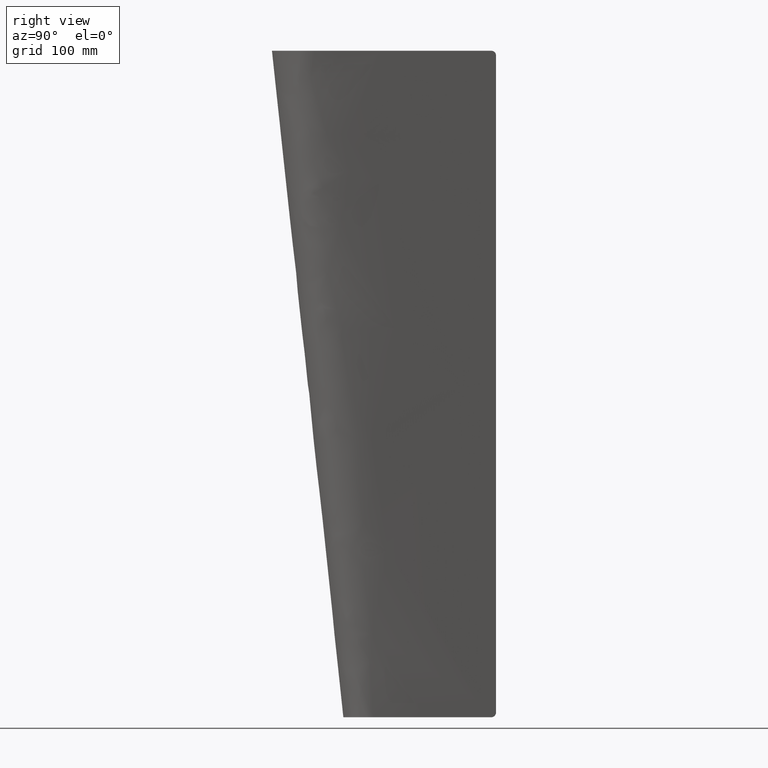
[diagram: clean part render]
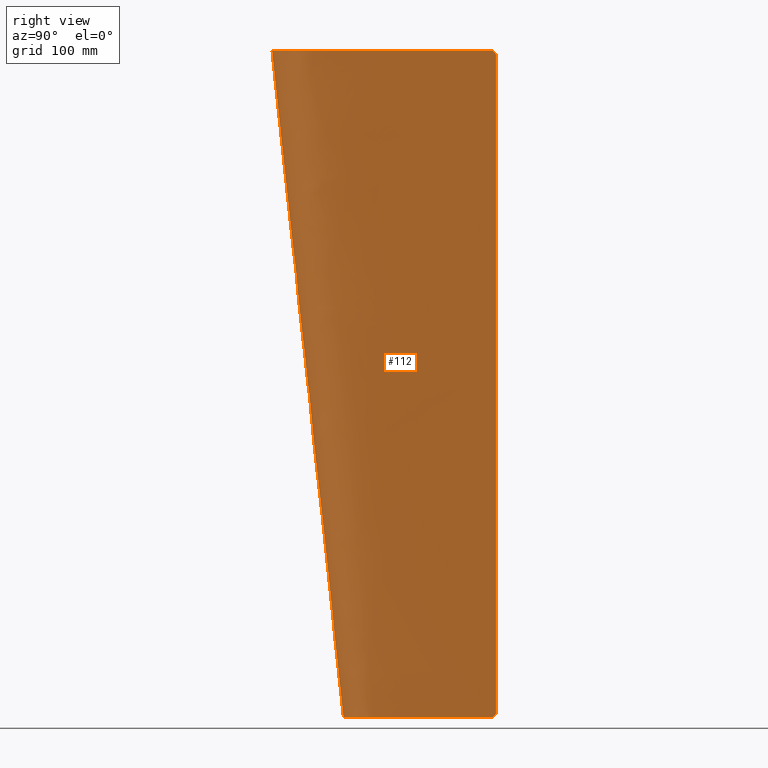
[diagram: same view with one face highlighted and labeled with its STEP entity id]
A machine part, right view. The second image highlights one B-rep face of the part: STEP entity #112.
In plain terms, the highlighted face is a freeform B-spline surface patch.
Its self-contained STEP definition (entity closure, byte-faithful):
#107=B_SPLINE_SURFACE_WITH_KNOTS('',3,3,((#541,#542,#543,#544,#545,#546,
#547,#548,#549,#550,#551,#552,#553),(#554,#555,#556,#557,#558,#559,#560,
#561,#562,#563,#564,#565,#566),(#567,#568,#569,#570,#571,#572,#573,#574,
#575,#576,#577,#578,#579),(#580,#581,#582,#583,#584,#585,#586,#587,#588,
#589,#590,#591,#592),(#593,#594,#595,#596,#597,#598,#599,#600,#601,#602,
#603,#604,#605),(#606,#607,#608,#609,#610,#611,#612,#613,#614,#615,#616,
#617,#618),(#619,#620,#621,#622,#623,#624,#625,#626,#627,#628,#629,#630,
#631),(#632,#633,#634,#635,#636,#637,#638,#639,#640,#641,#642,#643,#644),
(#645,#646,#647,#648,#649,#650,#651,#652,#653,#654,#655,#656,#657),(#658,
#659,#660,#661,#662,#663,#664,#665,#666,#667,#668,#669,#670),(#671,#672,
#673,#674,#675,#676,#677,#678,#679,#680,#681,#682,#683),(#684,#685,#686,
#687,#688,#689,#690,#691,#692,#693,#694,#695,#696),(#697,#698,#699,#700,
#701,#702,#703,#704,#705,#706,#707,#708,#709),(#710,#711,#712,#713,#714,
#715,#716,#717,#718,#719,#720,#721,#722),(#723,#724,#725,#726,#727,#728,
#729,#730,#731,#732,#733,#734,#735),(#736,#737,#738,#739,#740,#741,#742,
#743,#744,#745,#746,#747,#748),(#749,#750,#751,#752,#753,#754,#755,#756,
#757,#758,#759,#760,#761),(#762,#763,#764,#765,#766,#767,#768,#769,#770,
#771,#772,#773,#774),(#775,#776,#777,#778,#779,#780,#781,#782,#783,#784,
#785,#786,#787),(#788,#789,#790,#791,#792,#793,#794,#795,#796,#797,#798,
#799,#800),(#801,#802,#803,#804,#805,#806,#807,#808,#809,#810,#811,#812,
#813),(#814,#815,#816,#817,#818,#819,#820,#821,#822,#823,#824,#825,#826),
(#827,#828,#829,#830,#831,#832,#833,#834,#835,#836,#837,#838,#839),(#840,
#841,#842,#843,#844,#845,#846,#847,#848,#849,#850,#851,#852),(#853,#854,
#855,#856,#857,#858,#859,#860,#861,#862,#863,#864,#865),(#866,#867,#868,
#869,#870,#871,#872,#873,#874,#875,#876,#877,#878),(#879,#880,#881,#882,
#883,#884,#885,#886,#887,#888,#889,#890,#891),(#892,#893,#894,#895,#896,
#897,#898,#899,#900,#901,#902,#903,#904),(#905,#906,#907,#908,#909,#910,
#911,#912,#913,#914,#915,#916,#917),(#918,#919,#920,#921,#922,#923,#924,
#925,#926,#927,#928,#929,#930),(#931,#932,#933,#934,#935,#936,#937,#938,
#939,#940,#941,#942,#943),(#944,#945,#946,#947,#948,#949,#950,#951,#952,
#953,#954,#955,#956),(#957,#958,#959,#960,#961,#962,#963,#964,#965,#966,
#967,#968,#969),(#970,#971,#972,#973,#974,#975,#976,#977,#978,#979,#980,
#981,#982),(#983,#984,#985,#986,#987,#988,#989,#990,#991,#992,#993,#994,
#995),(#996,#997,#998,#999,#1000,#1001,#1002,#1003,#1004,#1005,#1006,#1007,
#1008),(#1009,#1010,#1011,#1012,#1013,#1014,#1015,#1016,#1017,#1018,#1019,
#1020,#1021),(#1022,#1023,#1024,#1025,#1026,#1027,#1028,#1029,#1030,#1031,
#1032,#1033,#1034),(#1035,#1036,#1037,#1038,#1039,#1040,#1041,#1042,#1043,
#1044,#1045,#1046,#1047),(#1048,#1049,#1050,#1051,#1052,#1053,#1054,#1055,
#1056,#1057,#1058,#1059,#1060),(#1061,#1062,#1063,#1064,#1065,#1066,#1067,
#1068,#1069,#1070,#1071,#1072,#1073),(#1074,#1075,#1076,#1077,#1078,#1079,
#1080,#1081,#1082,#1083,#1084,#1085,#1086),(#1087,#1088,#1089,#1090,#1091,
#1092,#1093,#1094,#1095,#1096,#1097,#1098,#1099),(#1100,#1101,#1102,#1103,
#1104,#1105,#1106,#1107,#1108,#1109,#1110,#1111,#1112),(#1113,#1114,#1115,
#1116,#1117,#1118,#1119,#1120,#1121,#1122,#1123,#1124,#1125),(#1126,#1127,
#1128,#1129,#1130,#1131,#1132,#1133,#1134,#1135,#1136,#1137,#1138),(#1139,
#1140,#1141,#1142,#1143,#1144,#1145,#1146,#1147,#1148,#1149,#1150,#1151),
(#1152,#1153,#1154,#1155,#1156,#1157,#1158,#1159,#1160,#1161,#1162,#1163,
#1164),(#1165,#1166,#1167,#1168,#1169,#1170,#1171,#1172,#1173,#1174,#1175,
#1176,#1177),(#1178,#1179,#1180,#1181,#1182,#1183,#1184,#1185,#1186,#1187,
#1188,#1189,#1190)),.UNSPECIFIED.,.F.,.F.,.F.,(4,3,1,1,1,1,1,1,1,1,1,1,
1,1,1,1,1,1,1,1,1,1,1,1,1,1,1,1,1,1,1,1,1,1,1,1,1,1,1,3,3,4),(4,3,3,3,4),
(0.,0.0270766096748266,0.14502855471111,0.262980499747393,0.277724492876929,
0.292468486006464,0.299840482571232,0.307212479135999,0.321956472265535,
0.33670046539507,0.344072461959838,0.351444458524606,0.358816455089373,
0.366188451654141,0.380932444783676,0.395676437913212,0.410420431042747,
0.425164424172283,0.439908417301818,0.469396403560889,0.49888438981996,
0.52837237607903,0.557860362338101,0.572604355467637,0.587348348597172,
0.602092341726707,0.616836334856243,0.631580327985778,0.638952324550546,
0.646324321115314,0.653696317680081,0.661068314244849,0.675812307374384,
0.69055630050392,0.697928297068688,0.705300293633455,0.720044286762991,
0.734788279892526,0.852740224928809,0.970692169965093,0.990367095145295,
1.),(0.,0.115384615384615,0.884615384615385,0.896213021416898,1.),
 .UNSPECIFIED.);
#112=ADVANCED_FACE('',(#126),#107,.T.);
#126=FACE_OUTER_BOUND('',#136,.T.);
#136=EDGE_LOOP('',(#171,#172,#173,#174,#175,#176,#177,#178));
#171=ORIENTED_EDGE('',*,*,#235,.T.);
#172=ORIENTED_EDGE('',*,*,#236,.F.);
#173=ORIENTED_EDGE('',*,*,#225,.T.);
#174=ORIENTED_EDGE('',*,*,#237,.F.);
#175=ORIENTED_EDGE('',*,*,#231,.T.);
#176=ORIENTED_EDGE('',*,*,#238,.F.);
#177=ORIENTED_EDGE('',*,*,#227,.T.);
#178=ORIENTED_EDGE('',*,*,#239,.F.);
#209=VERTEX_POINT('',#344);
#210=VERTEX_POINT('',#386);
#211=VERTEX_POINT('',#430);
#212=VERTEX_POINT('',#431);
#215=VERTEX_POINT('',#491);
#216=VERTEX_POINT('',#492);
#219=VERTEX_POINT('',#515);
#220=VERTEX_POINT('',#516);
#225=EDGE_CURVE('',#210,#209,#248,.T.);
#227=EDGE_CURVE('',#211,#212,#249,.T.);
#231=EDGE_CURVE('',#215,#216,#251,.T.);
#235=EDGE_CURVE('',#219,#220,#253,.T.);
#236=EDGE_CURVE('',#210,#220,#254,.T.);
#237=EDGE_CURVE('',#215,#209,#255,.T.);
#238=EDGE_CURVE('',#211,#216,#256,.T.);
#239=EDGE_CURVE('',#219,#212,#257,.T.);
#248=B_SPLINE_CURVE_WITH_KNOTS('',3,(#345,#346,#347,#348,#349,#350,#351,
#352,#353,#354,#355,#356,#357,#358,#359,#360,#361,#362,#363,#364,#365,#366,
#367,#368,#369,#370,#371,#372,#373,#374,#375,#376,#377,#378,#379,#380,#381,
#382,#383,#384,#385),.UNSPECIFIED.,.F.,.F.,(4,1,1,1,1,1,1,1,1,1,1,1,1,1,
1,1,1,1,1,1,1,1,1,1,1,1,1,1,1,1,1,1,1,1,1,1,1,1,4),(0.,0.116670801739459,
0.244447193504246,0.260419242474845,0.276391291445443,0.284377315930742,
0.292363340416041,0.30833538938664,0.324307438357238,0.332293462842537,
0.340279487327837,0.348265511813136,0.356251536298435,0.372223585269033,
0.388195634239632,0.40416768321023,0.420139732180829,0.436111781151427,
0.468055879092624,0.49999997703382,0.531944074975017,0.563888172916214,
0.579860221886812,0.595832270857411,0.611804319828009,0.627776368798608,
0.643748417769206,0.651734442254505,0.659720466739804,0.667706491225104,
0.675692515710403,0.691664564681001,0.707636613651599,0.715622638136899,
0.723608662622198,0.739580711592796,0.755552760563395,0.883329152328182,
1.),.UNSPECIFIED.);
#249=B_SPLINE_CURVE_WITH_KNOTS('',3,(#389,#390,#391,#392,#393,#394,#395,
#396,#397,#398,#399,#400,#401,#402,#403,#404,#405,#406,#407,#408,#409,#410,
#411,#412,#413,#414,#415,#416,#417,#418,#419,#420,#421,#422,#423,#424,#425,
#426,#427,#428,#429),.UNSPECIFIED.,.F.,.F.,(4,1,1,1,1,1,1,1,1,1,1,1,1,1,
1,1,1,1,1,1,1,1,1,1,1,1,1,1,1,1,1,1,1,1,1,1,1,1,4),(0.,0.117269018146902,
0.244845996439435,0.260793118726002,0.276740241012568,0.284713802155851,
0.292687363299135,0.308634485585701,0.324581607872268,0.332555169015551,
0.340528730158835,0.348502291302118,0.356475852445401,0.372422974731968,
0.388370097018534,0.404317219305101,0.420264341591668,0.436211463878234,
0.468105708451367,0.499999953024501,0.531894197597634,0.563788442170767,
0.579735564457334,0.5956826867439,0.611629809030467,0.627576931317034,0.6435240536036,
0.651497614746883,0.659471175890167,0.66744473703345,0.675418298176733,
0.6913654204633,0.707312542749867,0.71528610389315,0.723259665036433,0.739206787323,
0.755153909609566,0.882730887902099,1.),.UNSPECIFIED.);
#251=B_SPLINE_CURVE_WITH_KNOTS('',3,(#481,#482,#483,#484,#485,#486,#487,
#488,#489,#490),.UNSPECIFIED.,.F.,.F.,(4,3,3,4),(0.,0.468789890672117,0.993968865922699,
1.),.UNSPECIFIED.);
#253=B_SPLINE_CURVE_WITH_KNOTS('',3,(#508,#509,#510,#511,#512,#513,#514),
 .UNSPECIFIED.,.F.,.F.,(4,3,4),(0.,0.468789890674854,1.),.UNSPECIFIED.);
#254=B_SPLINE_CURVE_WITH_KNOTS('',3,(#517,#518,#519,#520,#521,#522),
 .UNSPECIFIED.,.F.,.F.,(4,2,4),(0.,0.5,1.),.UNSPECIFIED.);
#255=B_SPLINE_CURVE_WITH_KNOTS('',3,(#523,#524,#525,#526,#527,#528),
 .UNSPECIFIED.,.F.,.F.,(4,2,4),(0.,0.5,1.),.UNSPECIFIED.);
#256=B_SPLINE_CURVE_WITH_KNOTS('',3,(#529,#530,#531,#532,#533,#534),
 .UNSPECIFIED.,.F.,.F.,(4,2,4),(0.,0.5,1.),.UNSPECIFIED.);
#257=B_SPLINE_CURVE_WITH_KNOTS('',3,(#535,#536,#537,#538,#539,#540),
 .UNSPECIFIED.,.F.,.F.,(4,2,4),(0.,0.5,1.),.UNSPECIFIED.);
#344=CARTESIAN_POINT('',(-333.965053328038,-812.968381186053,-187.499999979995));
#345=CARTESIAN_POINT('',(-480.988339299375,-812.968381186072,-187.499999977795));
#346=CARTESIAN_POINT('',(-479.160086222613,-830.504863097711,-187.499999977647));
#347=CARTESIAN_POINT('',(-475.337282315882,-867.161274936592,-187.499999977418));
#348=CARTESIAN_POINT('',(-471.499101163816,-904.031735628332,-187.499999977311));
#349=CARTESIAN_POINT('',(-469.299388478992,-925.068356603149,-187.499999977276));
#350=CARTESIAN_POINT('',(-468.751013844615,-930.232258590686,-187.499999977269));
#351=CARTESIAN_POINT('',(-468.358119933075,-934.314941584154,-187.499999977265));
#352=CARTESIAN_POINT('',(-467.782771624124,-938.327307523754,-187.49999997726));
#353=CARTESIAN_POINT('',(-466.188966870687,-943.101224176674,-187.499999977256));
#354=CARTESIAN_POINT('',(-463.714737113447,-947.363651332985,-187.499999977253));
#355=CARTESIAN_POINT('',(-461.272989598694,-950.378789796676,-187.499999977251));
#356=CARTESIAN_POINT('',(-459.239636681243,-952.426464712457,-187.49999997725));
#357=CARTESIAN_POINT('',(-457.028688771037,-954.244143225862,-187.49999997725));
#358=CARTESIAN_POINT('',(-453.868640094342,-956.335479524349,-187.499999977249));
#359=CARTESIAN_POINT('',(-449.627373824587,-958.338299593767,-187.499999977249));
#360=CARTESIAN_POINT('',(-444.457621104176,-960.341785997172,-187.49999997725));
#361=CARTESIAN_POINT('',(-439.215719791301,-961.940719330081,-187.499999977251));
#362=CARTESIAN_POINT('',(-433.93641474848,-963.204426248655,-187.499999977253));
#363=CARTESIAN_POINT('',(-426.880952004902,-964.509287655462,-187.499999977256));
#364=CARTESIAN_POINT('',(-418.054113258737,-965.510289570531,-187.49999997726));
#365=CARTESIAN_POINT('',(-407.47597794209,-965.884432364477,-187.499999977264));
#366=CARTESIAN_POINT('',(-396.898040571948,-965.510298049321,-187.499999977267));
#367=CARTESIAN_POINT('',(-388.071489122787,-964.509033795327,-187.499999977269));
#368=CARTESIAN_POINT('',(-381.015930086901,-963.204410576133,-187.499999977269));
#369=CARTESIAN_POINT('',(-375.737428326976,-961.939627089599,-187.499999977269));
#370=CARTESIAN_POINT('',(-370.493305549956,-960.344164172543,-187.499999977269));
#371=CARTESIAN_POINT('',(-365.325728383943,-958.338346942769,-187.499999977269));
#372=CARTESIAN_POINT('',(-361.083292718412,-956.336818883523,-187.499999977268));
#373=CARTESIAN_POINT('',(-357.924591725161,-954.243915430927,-187.499999977267));
#374=CARTESIAN_POINT('',(-355.713312921138,-952.426313889384,-187.499999977267));
#375=CARTESIAN_POINT('',(-353.68043134474,-950.378472022442,-187.499999977267));
#376=CARTESIAN_POINT('',(-351.237621231232,-947.363510484659,-187.499999977266));
#377=CARTESIAN_POINT('',(-348.764485373282,-943.10098307583,-187.499999977265));
#378=CARTESIAN_POINT('',(-347.171823658887,-938.327142223051,-187.499999977264));
#379=CARTESIAN_POINT('',(-346.59527845765,-934.314924347883,-187.499999977264));
#380=CARTESIAN_POINT('',(-346.202352789346,-930.232309412005,-187.499999977263));
#381=CARTESIAN_POINT('',(-345.654320321554,-925.068358904184,-187.499999977262));
#382=CARTESIAN_POINT('',(-343.452987184745,-904.031969327017,-187.499999977259));
#383=CARTESIAN_POINT('',(-339.615487511753,-867.161917507294,-187.499999977253));
#384=CARTESIAN_POINT('',(-335.793265643769,-830.504959183981,-187.499999977257));
#385=CARTESIAN_POINT('',(-333.96505332792,-812.968381186065,-187.499999977262));
#386=CARTESIAN_POINT('',(-480.988339299256,-812.96838118606,-187.499999980794));
#389=CARTESIAN_POINT('',(-303.816665289561,-812.968381186065,501.311689277029));
#390=CARTESIAN_POINT('',(-305.797066494257,-831.964749389847,501.311689277029));
#391=CARTESIAN_POINT('',(-309.943871925205,-871.74166626055,501.311689277029));
#392=CARTESIAN_POINT('',(-314.692148107102,-917.288156741347,501.311689277029));
#393=CARTESIAN_POINT('',(-317.832472703473,-947.410461125823,501.311689277029));
#394=CARTESIAN_POINT('',(-318.631893661654,-955.076511028281,501.311689277029));
#395=CARTESIAN_POINT('',(-319.280744121176,-961.296210059936,501.311689277029));
#396=CARTESIAN_POINT('',(-319.935367220209,-967.572594829088,501.311689277029));
#397=CARTESIAN_POINT('',(-320.76365137594,-975.522073419032,501.311689277029));
#398=CARTESIAN_POINT('',(-321.603093461887,-983.604113835508,501.311689277029));
#399=CARTESIAN_POINT('',(-322.29344965963,-990.139559701644,501.311689277029));
#400=CARTESIAN_POINT('',(-322.764064504028,-995.082142477285,501.311689277029));
#401=CARTESIAN_POINT('',(-323.648287948868,-1000.00669383308,501.311689277029));
#402=CARTESIAN_POINT('',(-325.812469320497,-1006.37428016513,501.311689277029));
#403=CARTESIAN_POINT('',(-330.171620479801,-1013.70009372572,501.311689277029));
#404=CARTESIAN_POINT('',(-337.506158815579,-1020.95210994029,501.311689277029));
#405=CARTESIAN_POINT('',(-346.164478754233,-1026.67120173245,501.311689277029));
#406=CARTESIAN_POINT('',(-355.625838742186,-1031.07964107642,501.311689277029));
#407=CARTESIAN_POINT('',(-368.897823003358,-1035.51042746628,501.311689277029));
#408=CARTESIAN_POINT('',(-386.250561326556,-1038.78572098827,501.311689277029));
#409=CARTESIAN_POINT('',(-407.47759066905,-1039.97539924369,501.311689277029));
#410=CARTESIAN_POINT('',(-428.704528895177,-1038.78550700937,501.311689277029));
#411=CARTESIAN_POINT('',(-446.057103383826,-1035.51003889503,501.311689277029));
#412=CARTESIAN_POINT('',(-459.328758149093,-1031.07917429971,501.311689277029));
#413=CARTESIAN_POINT('',(-468.789998354001,-1026.67058926785,501.311689277029));
#414=CARTESIAN_POINT('',(-477.448062149682,-1020.95149089269,501.311689277029));
#415=CARTESIAN_POINT('',(-484.782302336922,-1013.69941488149,501.311689277029));
#416=CARTESIAN_POINT('',(-489.141278037643,-1006.3735299936,501.311689277029));
#417=CARTESIAN_POINT('',(-491.305260815341,-1000.00614760575,501.311689277029));
#418=CARTESIAN_POINT('',(-492.189394510508,-995.081584347215,501.311689277029));
#419=CARTESIAN_POINT('',(-492.659996253039,-990.139112419994,501.311689277029));
#420=CARTESIAN_POINT('',(-493.350327786041,-983.603913770102,501.311689277029));
#421=CARTESIAN_POINT('',(-494.189772942403,-975.521839346548,501.311689277029));
#422=CARTESIAN_POINT('',(-495.018048476071,-967.572442803645,501.311689277029));
#423=CARTESIAN_POINT('',(-495.672661100777,-961.296158952917,501.311689277029));
#424=CARTESIAN_POINT('',(-496.321499847793,-955.076572909652,501.311689277029));
#425=CARTESIAN_POINT('',(-497.120905993008,-947.410665404067,501.311689277029));
#426=CARTESIAN_POINT('',(-500.261163883895,-917.289000802255,501.311689277029));
#427=CARTESIAN_POINT('',(-505.009229748214,-871.744527757617,501.311689277028));
#428=CARTESIAN_POINT('',(-509.156304450629,-831.965027992108,501.311689277028));
#429=CARTESIAN_POINT('',(-511.136734701026,-812.968381186065,501.311689277027));
#430=CARTESIAN_POINT('',(-303.816665289616,-812.968381186059,501.3116892756));
#431=CARTESIAN_POINT('',(-511.136734700971,-812.968381186059,501.311689275598));
#481=CARTESIAN_POINT('',(-333.223705183193,-807.95988118606,-182.491499979997));
#482=CARTESIAN_POINT('',(-328.581127586968,-807.95988118606,-76.4208039249189));
#483=CARTESIAN_POINT('',(-323.938549990296,-807.95988118606,29.6498921301393));
#484=CARTESIAN_POINT('',(-319.295972393388,-807.95988118606,135.720588185187));
#485=CARTESIAN_POINT('',(-314.094955491403,-807.95988118606,254.550154621525));
#486=CARTESIAN_POINT('',(-308.893938589123,-807.95988118606,373.37972105785));
#487=CARTESIAN_POINT('',(-303.692921687331,-807.95988118606,492.209287494197));
#488=CARTESIAN_POINT('',(-303.633193419919,-807.95988118606,493.573921421484));
#489=CARTESIAN_POINT('',(-303.573465152507,-807.95988118606,494.938555348772));
#490=CARTESIAN_POINT('',(-303.513736885095,-807.95988118606,496.30318927606));
#491=CARTESIAN_POINT('',(-333.223705183193,-807.95988118606,-182.491499979997));
#492=CARTESIAN_POINT('',(-303.513736885095,-807.95988118606,496.30318927606));
#508=CARTESIAN_POINT('',(-511.439663105759,-807.95988118606,496.303189276059));
#509=CARTESIAN_POINT('',(-506.797085508877,-807.95988118606,390.232493220387));
#510=CARTESIAN_POINT('',(-502.154507911693,-807.95988118606,284.161797164729));
#511=CARTESIAN_POINT('',(-497.511930314698,-807.95988118606,178.091101109063));
#512=CARTESIAN_POINT('',(-492.251185145258,-807.95988118606,57.8969007460578));
#513=CARTESIAN_POINT('',(-486.990439976081,-807.95988118606,-62.2972996169589));
#514=CARTESIAN_POINT('',(-481.729694807384,-807.95988118606,-182.491499979997));
#515=CARTESIAN_POINT('',(-511.439663105759,-807.95988118606,496.303189276059));
#516=CARTESIAN_POINT('',(-481.729694807384,-807.95988118606,-182.491499979997));
#517=CARTESIAN_POINT('',(-480.988339299254,-812.96838118606,-187.499999979997));
#518=CARTESIAN_POINT('',(-481.126139502883,-811.646610798213,-187.499999979997));
#519=CARTESIAN_POINT('',(-481.284271211434,-810.356489598531,-186.960003076952));
#520=CARTESIAN_POINT('',(-481.557720095635,-808.50749779767,-185.116384165574));
#521=CARTESIAN_POINT('',(-481.671578308449,-807.95988118606,-183.819309233902));
#522=CARTESIAN_POINT('',(-481.729694807384,-807.95988118606,-182.491499979997));
#523=CARTESIAN_POINT('',(-333.223705183193,-807.95988118606,-182.491499979997));
#524=CARTESIAN_POINT('',(-333.281817914086,-807.95988118606,-183.819223144053));
#525=CARTESIAN_POINT('',(-333.395407077443,-808.506029721786,-185.113643883955));
#526=CARTESIAN_POINT('',(-333.668674768986,-810.353052788061,-186.957849340984));
#527=CARTESIAN_POINT('',(-333.827270075033,-811.646736680007,-187.499999979994));
#528=CARTESIAN_POINT('',(-333.965053328039,-812.96838118606,-187.499999979994));
#529=CARTESIAN_POINT('',(-303.816665289619,-812.96838118606,501.31168927606));
#530=CARTESIAN_POINT('',(-303.679274880988,-811.650507421976,501.311689276059));
#531=CARTESIAN_POINT('',(-303.568099151386,-810.357976898059,500.773116918637));
#532=CARTESIAN_POINT('',(-303.455859872015,-808.506234979604,498.926872738085));
#533=CARTESIAN_POINT('',(-303.455789863104,-807.95988118606,497.627126427108));
#534=CARTESIAN_POINT('',(-303.513736885095,-807.95988118606,496.30318927606));
#535=CARTESIAN_POINT('',(-511.43966310576,-807.95988118606,496.30318927606));
#536=CARTESIAN_POINT('',(-511.497604819121,-807.95988118606,497.627005138819));
#537=CARTESIAN_POINT('',(-511.497578031258,-808.504627169941,498.923909347698));
#538=CARTESIAN_POINT('',(-511.38557911023,-810.354365457404,500.770872722841));
#539=CARTESIAN_POINT('',(-511.274117173306,-811.650583549023,501.311689275444));
#540=CARTESIAN_POINT('',(-511.13673470097,-812.968381186061,501.311689275444));
#541=CARTESIAN_POINT('',(-297.273254510676,-793.581220781558,604.633441682222));
#542=CARTESIAN_POINT('',(-298.785893172177,-793.631250831375,570.192857546733));
#543=CARTESIAN_POINT('',(-300.298531833677,-793.681280881193,535.752273411243));
#544=CARTESIAN_POINT('',(-301.811170495178,-793.731310931011,501.311689275753));
#545=CARTESIAN_POINT('',(-311.895428238514,-794.064844596462,271.707795039156));
#546=CARTESIAN_POINT('',(-321.979617091969,-794.397706770693,42.1038977437437));
#547=CARTESIAN_POINT('',(-332.063796288951,-794.730474801729,-187.499999980002));
#548=CARTESIAN_POINT('',(-332.21583473105,-794.735491921321,-190.961721378217));
#549=CARTESIAN_POINT('',(-332.367873173148,-794.740509040913,-194.423442776432));
#550=CARTESIAN_POINT('',(-332.519911615246,-794.745526160505,-197.885164174647));
#551=CARTESIAN_POINT('',(-333.880500052695,-794.790424245568,-228.864027434994));
#552=CARTESIAN_POINT('',(-335.241088490144,-794.835322330632,-259.84289069534));
#553=CARTESIAN_POINT('',(-336.601676927593,-794.880220415695,-290.821753955687));
#554=CARTESIAN_POINT('',(-297.772917057193,-798.374045992918,604.63344173992));
#555=CARTESIAN_POINT('',(-299.283818216286,-798.407419159325,570.192857585198));
#556=CARTESIAN_POINT('',(-300.794719375379,-798.440792325733,535.752273430476));
#557=CARTESIAN_POINT('',(-302.305620534472,-798.47416549214,501.311689275753));
#558=CARTESIAN_POINT('',(-312.378294928425,-798.696653268191,271.707794910939));
#559=CARTESIAN_POINT('',(-322.450904211425,-798.918509009655,42.103897667044));
#560=CARTESIAN_POINT('',(-332.523504367312,-799.140276142995,-187.49999998));
#561=CARTESIAN_POINT('',(-332.675368233044,-799.143619710062,-190.961721377059));
#562=CARTESIAN_POINT('',(-332.827232098775,-799.146963277129,-194.423442774118));
#563=CARTESIAN_POINT('',(-332.979095964506,-799.150306844196,-197.885164171177));
#564=CARTESIAN_POINT('',(-334.338122122158,-799.18022834713,-228.864027421174));
#565=CARTESIAN_POINT('',(-335.69714827981,-799.210149850064,-259.842890671172));
#566=CARTESIAN_POINT('',(-337.056174437461,-799.240071352998,-290.821753921169));
#567=CARTESIAN_POINT('',(-298.272579603709,-803.166871204279,604.633441797618));
#568=CARTESIAN_POINT('',(-299.781743260394,-803.183587487276,570.192857623663));
#569=CARTESIAN_POINT('',(-301.29090691708,-803.200303770273,535.752273449708));
#570=CARTESIAN_POINT('',(-302.800070573766,-803.21702005327,501.311689275753));
#571=CARTESIAN_POINT('',(-312.861161618337,-803.328461939919,271.707794782721));
#572=CARTESIAN_POINT('',(-322.922191330881,-803.439311248617,42.1038975903443));
#573=CARTESIAN_POINT('',(-332.983212445673,-803.550077484261,-187.499999979999));
#574=CARTESIAN_POINT('',(-333.134901735037,-803.551747498804,-190.961721375901));
#575=CARTESIAN_POINT('',(-333.286591024402,-803.553417513346,-194.423442771803));
#576=CARTESIAN_POINT('',(-333.438280313766,-803.555087527888,-197.885164167706));
#577=CARTESIAN_POINT('',(-334.79574419162,-803.570032448692,-228.864027407355));
#578=CARTESIAN_POINT('',(-336.153208069475,-803.584977369496,-259.842890647004));
#579=CARTESIAN_POINT('',(-337.51067194733,-803.599922290301,-290.821753886652));
#580=CARTESIAN_POINT('',(-298.772242150225,-807.959696415639,604.633441855316));
#581=CARTESIAN_POINT('',(-300.279668304503,-807.959755815226,570.192857662128));
#582=CARTESIAN_POINT('',(-301.787094458782,-807.959815214813,535.752273468941));
#583=CARTESIAN_POINT('',(-303.29452061306,-807.9598746144,501.311689275753));
#584=CARTESIAN_POINT('',(-313.344028308248,-807.960270611648,271.707794654504));
#585=CARTESIAN_POINT('',(-323.393478450336,-807.960113487579,42.1038975136446));
#586=CARTESIAN_POINT('',(-333.442920524034,-807.959878825528,-187.499999979997));
#587=CARTESIAN_POINT('',(-333.594435237031,-807.959875287545,-190.961721374743));
#588=CARTESIAN_POINT('',(-333.745949950028,-807.959871749562,-194.423442769489));
#589=CARTESIAN_POINT('',(-333.897464663026,-807.959868211579,-197.885164164235));
#590=CARTESIAN_POINT('',(-335.253366261083,-807.959836550254,-228.864027393535));
#591=CARTESIAN_POINT('',(-336.609267859141,-807.959804888929,-259.842890622835));
#592=CARTESIAN_POINT('',(-337.965169457198,-807.959773227604,-290.821753852135));
#593=CARTESIAN_POINT('',(-300.948887229915,-828.838346390215,604.633442106661));
#594=CARTESIAN_POINT('',(-302.448744423717,-828.765844571094,570.192857829692));
#595=CARTESIAN_POINT('',(-303.948601617518,-828.693342751974,535.752273552723));
#596=CARTESIAN_POINT('',(-305.44845881132,-828.620840932853,501.311689275754));
#597=CARTESIAN_POINT('',(-315.447506769999,-828.137495472051,271.707794095959));
#598=CARTESIAN_POINT('',(-325.446513637457,-827.653768772114,42.1038971795232));
#599=CARTESIAN_POINT('',(-335.445514742541,-827.169988646239,-187.499999979991));
#600=CARTESIAN_POINT('',(-335.596268960694,-827.16269472819,-190.961721369699));
#601=CARTESIAN_POINT('',(-335.747023178847,-827.15540081014,-194.423442759407));
#602=CARTESIAN_POINT('',(-335.897777397,-827.148106892091,-197.885164149116));
#603=CARTESIAN_POINT('',(-337.24687334461,-827.082833791259,-228.864027333334));
#604=CARTESIAN_POINT('',(-338.595969292219,-827.017560690426,-259.842890517553));
#605=CARTESIAN_POINT('',(-339.945065239829,-826.952287589594,-290.821753701771));
#606=CARTESIAN_POINT('',(-305.301842295275,-870.594149982003,604.633442459101));
#607=CARTESIAN_POINT('',(-306.786626286067,-870.376573868528,570.192858064652));
#608=CARTESIAN_POINT('',(-308.271410276858,-870.158997755053,535.752273670203));
#609=CARTESIAN_POINT('',(-309.75619426765,-869.941421641578,501.311689275753));
#610=CARTESIAN_POINT('',(-319.654754206259,-868.490914218411,271.707793312758));
#611=CARTESIAN_POINT('',(-329.553297228165,-867.040266577978,42.1038967110378));
#612=CARTESIAN_POINT('',(-339.451837875602,-865.58959930958,-187.499999979986));
#613=CARTESIAN_POINT('',(-339.601077458684,-865.567727703851,-190.961721362631));
#614=CARTESIAN_POINT('',(-339.750317041767,-865.545856098123,-194.423442745276));
#615=CARTESIAN_POINT('',(-339.899556624849,-865.523984492395,-197.885164127921));
#616=CARTESIAN_POINT('',(-341.235098138882,-865.328256007864,-228.86402724893));
#617=CARTESIAN_POINT('',(-342.570639652916,-865.132527523333,-259.842890369938));
#618=CARTESIAN_POINT('',(-343.906181166949,-864.936799038802,-290.821753490947));
#619=CARTESIAN_POINT('',(-310.378020583813,-919.276572351045,604.633442607167));
#620=CARTESIAN_POINT('',(-311.816063091594,-918.613767147804,570.192858163363));
#621=CARTESIAN_POINT('',(-313.254105599375,-917.950961944563,535.752273719558));
#622=CARTESIAN_POINT('',(-314.692148107156,-917.288156741322,501.311689275753));
#623=CARTESIAN_POINT('',(-324.279098159027,-912.869455386383,271.707792983721));
#624=CARTESIAN_POINT('',(-333.866043035421,-908.450715080059,42.1038965142555));
#625=CARTESIAN_POINT('',(-343.452987184859,-904.031969326964,-187.499999979992));
#626=CARTESIAN_POINT('',(-343.597528850025,-903.965348216093,-190.96172135967));
#627=CARTESIAN_POINT('',(-343.742070515191,-903.898727105222,-194.423442739348));
#628=CARTESIAN_POINT('',(-343.886612180357,-903.83210599435,-197.885164119026));
#629=CARTESIAN_POINT('',(-345.180112137607,-903.235915242258,-228.864027213485));
#630=CARTESIAN_POINT('',(-346.473612094857,-902.639724490165,-259.842890307944));
#631=CARTESIAN_POINT('',(-347.767112052106,-902.043533738073,-290.821753402403));
#632=CARTESIAN_POINT('',(-313.659195129004,-950.761773378853,604.633442650085));
#633=CARTESIAN_POINT('',(-315.050287653844,-949.644669294496,570.192858191974));
#634=CARTESIAN_POINT('',(-316.441380178684,-948.527565210139,535.752273733864));
#635=CARTESIAN_POINT('',(-317.832472703525,-947.410461125782,501.311689275753));
#636=CARTESIAN_POINT('',(-327.106422869126,-939.963100563401,271.707792888348));
#637=CARTESIAN_POINT('',(-336.380371689879,-932.515730404306,42.1038964572273));
#638=CARTESIAN_POINT('',(-345.654320321665,-925.068358904095,-187.499999979995));
#639=CARTESIAN_POINT('',(-345.794142975996,-924.956075421374,-190.961721358814));
#640=CARTESIAN_POINT('',(-345.933965630328,-924.843791938653,-194.423442737632));
#641=CARTESIAN_POINT('',(-346.073788284659,-924.731508455932,-197.885164116451));
#642=CARTESIAN_POINT('',(-347.325057925096,-923.726686213621,-228.864027203215));
#643=CARTESIAN_POINT('',(-348.576327565532,-922.72186397131,-259.84289028998));
#644=CARTESIAN_POINT('',(-349.827597205968,-921.717041728999,-290.821753376745));
#645=CARTESIAN_POINT('',(-314.496324616783,-958.80314005406,604.633442658574));
#646=CARTESIAN_POINT('',(-315.874847631757,-957.560930378785,570.192858197633));
#647=CARTESIAN_POINT('',(-317.253370646731,-956.31872070351,535.752273736693));
#648=CARTESIAN_POINT('',(-318.631893661705,-955.076511028235,501.311689275753));
#649=CARTESIAN_POINT('',(-327.822047094864,-946.795113193069,271.707792869485));
#650=CARTESIAN_POINT('',(-337.012199980625,-938.513711567257,42.103896445949));
#651=CARTESIAN_POINT('',(-346.202352789456,-930.232309411906,-187.499999979996));
#652=CARTESIAN_POINT('',(-346.340912060211,-930.10745130918,-190.961721358644));
#653=CARTESIAN_POINT('',(-346.479471330966,-929.982593206453,-194.423442737293));
#654=CARTESIAN_POINT('',(-346.618030601722,-929.857735103726,-197.885164115941));
#655=CARTESIAN_POINT('',(-347.857994252291,-928.74038288315,-228.864027201185));
#656=CARTESIAN_POINT('',(-349.09795790286,-927.623030662574,-259.842890286428));
#657=CARTESIAN_POINT('',(-350.337921553429,-926.505678441997,-290.821753371672));
#658=CARTESIAN_POINT('',(-315.183563971018,-965.343402923834,604.633442664148));
#659=CARTESIAN_POINT('',(-316.549290687754,-963.994338635851,570.19285820135));
#660=CARTESIAN_POINT('',(-317.91501740449,-962.645274347869,535.752273738551));
#661=CARTESIAN_POINT('',(-319.280744121227,-961.296210059886,501.311689275753));
#662=CARTESIAN_POINT('',(-328.385588899468,-952.302448140002,271.707792857098));
#663=CARTESIAN_POINT('',(-337.490433678555,-943.308686242323,42.1038964385434));
#664=CARTESIAN_POINT('',(-346.595278457759,-934.314924347776,-187.499999979997));
#665=CARTESIAN_POINT('',(-346.732551545507,-934.179326048664,-190.961721358533));
#666=CARTESIAN_POINT('',(-346.869824633256,-934.043727749552,-194.42344273707));
#667=CARTESIAN_POINT('',(-347.007097721004,-933.90812945044,-197.885164115607));
#668=CARTESIAN_POINT('',(-348.235551350136,-932.69466346537,-228.864027199851));
#669=CARTESIAN_POINT('',(-349.464004979268,-931.481197480299,-259.842890284095));
#670=CARTESIAN_POINT('',(-350.6924586084,-930.267731495229,-290.82175336834));
#671=CARTESIAN_POINT('',(-315.849898912234,-971.959413782147,604.633442668954));
#672=CARTESIAN_POINT('',(-317.211721681576,-970.497140797776,570.192858204553));
#673=CARTESIAN_POINT('',(-318.573544450917,-969.034867813405,535.752273740153));
#674=CARTESIAN_POINT('',(-319.935367220259,-967.572594829034,501.311689275753));
#675=CARTESIAN_POINT('',(-329.014185682536,-957.824108266561,271.707792846418));
#676=CARTESIAN_POINT('',(-338.093004636228,-948.075625013662,42.1038964321589));
#677=CARTESIAN_POINT('',(-347.171823658995,-938.327142222935,-187.499999979997));
#678=CARTESIAN_POINT('',(-347.308704358291,-938.18016505133,-190.961721358438));
#679=CARTESIAN_POINT('',(-347.445585057588,-938.033187879726,-194.423442736878));
#680=CARTESIAN_POINT('',(-347.582465756885,-937.886210708122,-197.885164115319));
#681=CARTESIAN_POINT('',(-348.807407911003,-936.570915461117,-228.864027198702));
#682=CARTESIAN_POINT('',(-350.032350065122,-935.255620214113,-259.842890282085));
#683=CARTESIAN_POINT('',(-351.25729221924,-933.940324967108,-290.821753365468));
#684=CARTESIAN_POINT('',(-316.563526597629,-980.385239052773,604.6334426736));
#685=CARTESIAN_POINT('',(-317.963568190416,-978.764183841506,570.192858207651));
#686=CARTESIAN_POINT('',(-319.363609783204,-977.143128630239,535.752273741702));
#687=CARTESIAN_POINT('',(-320.763651375992,-975.522073418972,501.311689275753));
#688=CARTESIAN_POINT('',(-330.097261994577,-964.715038677192,271.707792836092));
#689=CARTESIAN_POINT('',(-339.430873613652,-953.90801042364,42.1038964259868));
#690=CARTESIAN_POINT('',(-348.764485373393,-943.100983075701,-187.499999979998));
#691=CARTESIAN_POINT('',(-348.9052075644,-942.93804630419,-190.961721358346));
#692=CARTESIAN_POINT('',(-349.045929755406,-942.775109532679,-194.423442736693));
#693=CARTESIAN_POINT('',(-349.186651946413,-942.612172761168,-197.885164115041));
#694=CARTESIAN_POINT('',(-350.445971519367,-941.154055430489,-228.864027197591));
#695=CARTESIAN_POINT('',(-351.705291092322,-939.695938099809,-259.842890280141));
#696=CARTESIAN_POINT('',(-352.964610665277,-938.237820769129,-290.821753362691));
#697=CARTESIAN_POINT('',(-317.157914740091,-989.040207089063,604.633442676646));
#698=CARTESIAN_POINT('',(-318.639640980708,-987.228176004522,570.192858209682));
#699=CARTESIAN_POINT('',(-320.121367221325,-985.416144919982,535.752273742717));
#700=CARTESIAN_POINT('',(-321.603093461942,-983.604113835441,501.311689275753));
#701=CARTESIAN_POINT('',(-331.481268399389,-971.52390660517,271.707792829324));
#702=CARTESIAN_POINT('',(-341.359444718234,-959.443707946966,42.103896421942));
#703=CARTESIAN_POINT('',(-351.237621231349,-947.363510484515,-187.499999979999));
#704=CARTESIAN_POINT('',(-351.386553785848,-947.181378219057,-190.961721358286));
#705=CARTESIAN_POINT('',(-351.535486340346,-946.999245953599,-194.423442736572));
#706=CARTESIAN_POINT('',(-351.684418894845,-946.817113688141,-197.885164114859));
#707=CARTESIAN_POINT('',(-353.017212817313,-945.187216334232,-228.864027196863));
#708=CARTESIAN_POINT('',(-354.350006739782,-943.557318980323,-259.842890278868));
#709=CARTESIAN_POINT('',(-355.682800662251,-941.927421626414,-290.821753360873));
#710=CARTESIAN_POINT('',(-317.58540292569,-996.103725956634,604.63344267825));
#711=CARTESIAN_POINT('',(-319.154751837022,-994.11567053828,570.192858210751));
#712=CARTESIAN_POINT('',(-320.724100748355,-992.127615119925,535.752273743252));
#713=CARTESIAN_POINT('',(-322.293449659688,-990.139559701571,501.311689275753));
#714=CARTESIAN_POINT('',(-332.75577573524,-976.885856912541,271.707792825759));
#715=CARTESIAN_POINT('',(-343.218103426423,-963.632163793317,42.1038964198125));
#716=CARTESIAN_POINT('',(-353.680431344864,-950.378472022283,-187.49999998));
#717=CARTESIAN_POINT('',(-353.83817110795,-950.178647067812,-190.961721358254));
#718=CARTESIAN_POINT('',(-353.995910871035,-949.97882211334,-194.423442736509));
#719=CARTESIAN_POINT('',(-354.15365063412,-949.778997158869,-197.885164114763));
#720=CARTESIAN_POINT('',(-355.565260058801,-947.990768347685,-228.86402719648));
#721=CARTESIAN_POINT('',(-356.976869483482,-946.202539536501,-259.842890278198));
#722=CARTESIAN_POINT('',(-358.388478908163,-944.414310725318,-290.821753359915));
#723=CARTESIAN_POINT('',(-317.821677805901,-1001.48052004837,604.633442679069));
#724=CARTESIAN_POINT('',(-319.46914003863,-999.347727524648,570.192858211297));
#725=CARTESIAN_POINT('',(-321.11660227136,-997.214935000927,535.752273743525));
#726=CARTESIAN_POINT('',(-322.764064504089,-995.082142477206,501.311689275753));
#727=CARTESIAN_POINT('',(-333.747146055616,-980.863525652401,271.707792823939));
#728=CARTESIAN_POINT('',(-344.730229364805,-966.644919057929,42.1038964187258));
#729=CARTESIAN_POINT('',(-355.713312921269,-952.426313889215,-187.49999998));
#730=CARTESIAN_POINT('',(-355.878904079532,-952.211941005073,-190.961721358238));
#731=CARTESIAN_POINT('',(-356.044495237795,-951.997568120931,-194.423442736476));
#732=CARTESIAN_POINT('',(-356.210086396058,-951.783195236788,-197.885164114714));
#733=CARTESIAN_POINT('',(-357.691957771264,-949.864777345623,-228.864027196285));
#734=CARTESIAN_POINT('',(-359.173829146471,-947.946359454459,-259.842890277856));
#735=CARTESIAN_POINT('',(-360.655700521677,-946.027941563294,-290.821753359426));
#736=CARTESIAN_POINT('',(-318.50684298219,-1006.87111397877,604.633442679536));
#737=CARTESIAN_POINT('',(-320.220657971104,-1004.58297393018,570.192858211608));
#738=CARTESIAN_POINT('',(-321.934472960018,-1002.29483388159,535.752273743681));
#739=CARTESIAN_POINT('',(-323.648287948931,-1000.00669383299,501.311689275753));
#740=CARTESIAN_POINT('',(-335.073721208356,-984.752426842381,271.707792822901));
#741=CARTESIAN_POINT('',(-346.499156335432,-969.498170401743,42.103896418107));
#742=CARTESIAN_POINT('',(-357.924591725297,-954.243915430745,-187.499999980001));
#743=CARTESIAN_POINT('',(-358.096852190233,-954.013928129265,-190.961721358229));
#744=CARTESIAN_POINT('',(-358.269112655169,-953.783940827784,-194.423442736458));
#745=CARTESIAN_POINT('',(-358.441373120105,-953.553953526303,-197.885164114687));
#746=CARTESIAN_POINT('',(-359.982927963648,-951.495802582133,-228.864027196174));
#747=CARTESIAN_POINT('',(-361.524482807192,-949.437651637963,-259.842890277661));
#748=CARTESIAN_POINT('',(-363.066037650736,-947.379500693793,-290.821753359149));
#749=CARTESIAN_POINT('',(-320.521846444644,-1013.87990278565,604.633442679732));
#750=CARTESIAN_POINT('',(-322.285387403283,-1011.37802857878,570.192858211739));
#751=CARTESIAN_POINT('',(-324.048928361923,-1008.87615437191,535.752273743746));
#752=CARTESIAN_POINT('',(-325.812469320562,-1006.37428016504,501.311689275753));
#753=CARTESIAN_POINT('',(-337.569409044824,-989.695118785914,271.707792822467));
#754=CARTESIAN_POINT('',(-349.326350742801,-973.015968090948,42.1038964178492));
#755=CARTESIAN_POINT('',(-361.083292718552,-956.336818883324,-187.499999980001));
#756=CARTESIAN_POINT('',(-361.260551284362,-956.085348554255,-190.961721358226));
#757=CARTESIAN_POINT('',(-361.437809850173,-955.833878225187,-194.423442736451));
#758=CARTESIAN_POINT('',(-361.615068415984,-955.582407896118,-197.885164114676));
#759=CARTESIAN_POINT('',(-363.201351146536,-953.332005844043,-228.864027196128));
#760=CARTESIAN_POINT('',(-364.787633877088,-951.081603791969,-259.842890277581));
#761=CARTESIAN_POINT('',(-366.37391660764,-948.831201739894,-290.821753359034));
#762=CARTESIAN_POINT('',(-324.89850494745,-1022.00435906692,604.633442679256));
#763=CARTESIAN_POINT('',(-326.656210124922,-1019.23627061982,570.192858211421));
#764=CARTESIAN_POINT('',(-328.413915302394,-1016.46818217272,535.752273743587));
#765=CARTESIAN_POINT('',(-330.171620479866,-1013.70009372562,501.311689275753));
#766=CARTESIAN_POINT('',(-341.889654996348,-995.246170744967,271.707792823524));
#767=CARTESIAN_POINT('',(-353.607691547029,-976.792258123438,42.103896418484));
#768=CARTESIAN_POINT('',(-365.325728384082,-958.33834694255,-187.499999980002));
#769=CARTESIAN_POINT('',(-365.502400379924,-958.060118655273,-190.961721358236));
#770=CARTESIAN_POINT('',(-365.679072375766,-957.781890367997,-194.42344273647));
#771=CARTESIAN_POINT('',(-365.855744371608,-957.503662080721,-197.885164114705));
#772=CARTESIAN_POINT('',(-367.436777901324,-955.013803690865,-228.864027196243));
#773=CARTESIAN_POINT('',(-369.01781143104,-952.523945301009,-259.842890277782));
#774=CARTESIAN_POINT('',(-370.598844960756,-950.034086911153,-290.82175335932));
#775=CARTESIAN_POINT('',(-332.558087449086,-1030.04330480695,604.633442677788));
#776=CARTESIAN_POINT('',(-334.207444571271,-1027.01290651803,570.192858210443));
#777=CARTESIAN_POINT('',(-335.856801693455,-1023.9825082291,535.752273743098));
#778=CARTESIAN_POINT('',(-337.50615881564,-1020.95210994018,501.311689275753));
#779=CARTESIAN_POINT('',(-348.501872963537,-1000.74945468068,271.707792826786));
#780=CARTESIAN_POINT('',(-359.497589115679,-980.546808776949,42.1038964204365));
#781=CARTESIAN_POINT('',(-370.493305550086,-960.344164172302,-187.499999980002));
#782=CARTESIAN_POINT('',(-370.659087173339,-960.039570357381,-190.961721358266));
#783=CARTESIAN_POINT('',(-370.824868796591,-959.734976542459,-194.42344273653));
#784=CARTESIAN_POINT('',(-370.990650419843,-959.430382727538,-197.885164114794));
#785=CARTESIAN_POINT('',(-372.474226261752,-956.704579851761,-228.864027196596));
#786=CARTESIAN_POINT('',(-373.957802103661,-953.978776975985,-259.842890278398));
#787=CARTESIAN_POINT('',(-375.44137794557,-951.252974100208,-290.8217533602));
#788=CARTESIAN_POINT('',(-341.728536923567,-1036.38094046753,604.63344267568));
#789=CARTESIAN_POINT('',(-343.207184200474,-1033.14436088913,570.192858209038));
#790=CARTESIAN_POINT('',(-344.685831477381,-1029.90778131073,535.752273742395));
#791=CARTESIAN_POINT('',(-346.164478754288,-1026.67120173233,501.311689275753));
#792=CARTESIAN_POINT('',(-356.022127267002,-1005.094004543,271.707792831471));
#793=CARTESIAN_POINT('',(-365.879777664285,-983.516815267851,42.1038964232394));
#794=CARTESIAN_POINT('',(-375.737428327094,-961.939627089342,-187.499999980002));
#795=CARTESIAN_POINT('',(-375.886051414828,-961.614309380142,-190.961721358308));
#796=CARTESIAN_POINT('',(-376.034674502563,-961.288991670942,-194.423442736615));
#797=CARTESIAN_POINT('',(-376.183297590297,-960.963673961742,-197.885164114921));
#798=CARTESIAN_POINT('',(-377.513322101984,-958.052413444165,-228.864027197101));
#799=CARTESIAN_POINT('',(-378.843346613671,-955.141152926588,-259.842890279281));
#800=CARTESIAN_POINT('',(-380.173371125358,-952.229892409011,-290.821753361461));
#801=CARTESIAN_POINT('',(-351.817325582606,-1041.2609276429,604.633442673188));
#802=CARTESIAN_POINT('',(-353.086829969149,-1037.86716545404,570.192858207376));
#803=CARTESIAN_POINT('',(-354.356334355691,-1034.47340326517,535.752273741565));
#804=CARTESIAN_POINT('',(-355.625838742234,-1031.0796410763,501.311689275753));
#805=CARTESIAN_POINT('',(-364.089201319183,-1008.45455981717,271.70779283701));
#806=CARTESIAN_POINT('',(-372.552565584121,-985.829484767566,42.103896426552));
#807=CARTESIAN_POINT('',(-381.015930087002,-963.204410575863,-187.499999980002));
#808=CARTESIAN_POINT('',(-381.143531622912,-962.863293964856,-190.961721358358));
#809=CARTESIAN_POINT('',(-381.271133158822,-962.522177353848,-194.423442736714));
#810=CARTESIAN_POINT('',(-381.398734694733,-962.181060742841,-197.88516411507));
#811=CARTESIAN_POINT('',(-382.540637834255,-959.128416225092,-228.864027197697));
#812=CARTESIAN_POINT('',(-383.682540973776,-956.075771707343,-259.842890280324));
#813=CARTESIAN_POINT('',(-384.824444113298,-953.023127189595,-290.821753362951));
#814=CARTESIAN_POINT('',(-366.021773515966,-1046.16063774122,604.633442669693));
#815=CARTESIAN_POINT('',(-366.980456678442,-1042.61056764953,570.192858205046));
#816=CARTESIAN_POINT('',(-367.939139840918,-1039.06049755784,535.7522737404));
#817=CARTESIAN_POINT('',(-368.897823003394,-1035.51042746615,501.311689275753));
#818=CARTESIAN_POINT('',(-375.289044086567,-1011.84329352156,271.707792844775));
#819=CARTESIAN_POINT('',(-381.680266510168,-988.176163396286,42.1038964311943));
#820=CARTESIAN_POINT('',(-388.071489122864,-964.509033795045,-187.499999980002));
#821=CARTESIAN_POINT('',(-388.167849125017,-964.152206189821,-190.961721358428));
#822=CARTESIAN_POINT('',(-388.264209127171,-963.795378584597,-194.423442736854));
#823=CARTESIAN_POINT('',(-388.360569129324,-963.438550979372,-197.88516411528));
#824=CARTESIAN_POINT('',(-389.222892519075,-960.24530914441,-228.864027198533));
#825=CARTESIAN_POINT('',(-390.085215908826,-957.052067309448,-259.842890281787));
#826=CARTESIAN_POINT('',(-390.947539298576,-953.858825474486,-290.82175336504));
#827=CARTESIAN_POINT('',(-384.653439689583,-1049.77703476468,604.633442665645));
#828=CARTESIAN_POINT('',(-385.18581356858,-1046.11326350583,570.192858202348));
#829=CARTESIAN_POINT('',(-385.718187447578,-1042.44949224698,535.75227373905));
#830=CARTESIAN_POINT('',(-386.250561326576,-1038.78572098814,501.311689275753));
#831=CARTESIAN_POINT('',(-389.799720519893,-1014.36057926249,271.707792853771));
#832=CARTESIAN_POINT('',(-393.348880491004,-989.935438586234,42.1038964365688));
#833=CARTESIAN_POINT('',(-396.89804057199,-965.51029804903,-187.49999998));
#834=CARTESIAN_POINT('',(-396.951551002431,-965.14204196762,-190.961721358508));
#835=CARTESIAN_POINT('',(-397.005061432872,-964.773785886211,-194.423442737015));
#836=CARTESIAN_POINT('',(-397.058571863312,-964.405529804802,-197.885164115522));
#837=CARTESIAN_POINT('',(-397.537435445019,-961.11001480563,-228.8640271995));
#838=CARTESIAN_POINT('',(-398.016299026727,-957.814499806459,-259.842890283478));
#839=CARTESIAN_POINT('',(-398.495162608434,-954.518984807288,-290.821753367456));
#840=CARTESIAN_POINT('',(-407.477832578126,-1051.0890441068,604.633442663347));
#841=CARTESIAN_POINT('',(-407.477751941768,-1047.38449581905,570.192858200816));
#842=CARTESIAN_POINT('',(-407.477671305409,-1043.6799475313,535.752273738284));
#843=CARTESIAN_POINT('',(-407.47759066905,-1039.97539924355,501.311689275753));
#844=CARTESIAN_POINT('',(-407.477053093325,-1015.27841065856,271.707792858877));
#845=CARTESIAN_POINT('',(-407.476515517668,-990.581421548501,42.1038964396086));
#846=CARTESIAN_POINT('',(-407.47597794209,-965.884432364182,-187.499999979998));
#847=CARTESIAN_POINT('',(-407.475969837101,-965.512077640336,-190.96172135855));
#848=CARTESIAN_POINT('',(-407.475961732113,-965.139722916491,-194.423442737103));
#849=CARTESIAN_POINT('',(-407.475953627125,-964.767368192645,-197.885164115656));
#850=CARTESIAN_POINT('',(-407.475881095776,-961.435174538844,-228.864027200044));
#851=CARTESIAN_POINT('',(-407.475808564428,-958.102980885042,-259.842890284432));
#852=CARTESIAN_POINT('',(-407.475736033079,-954.770787231241,-290.82175336882));
#853=CARTESIAN_POINT('',(-430.302090990799,-1049.77678996404,604.633442665659));
#854=CARTESIAN_POINT('',(-429.769570292252,-1046.1130289791,570.192858202357));
#855=CARTESIAN_POINT('',(-429.237049593705,-1042.44926799417,535.752273739055));
#856=CARTESIAN_POINT('',(-428.704528895158,-1038.78550700924,501.311689275753));
#857=CARTESIAN_POINT('',(-425.154390904844,-1014.36043377635,271.70779285374));
#858=CARTESIAN_POINT('',(-421.604252136837,-989.93536159429,42.1038964365142));
#859=CARTESIAN_POINT('',(-418.054113258694,-965.51028957024,-187.499999979993));
#860=CARTESIAN_POINT('',(-418.000588070999,-965.142034521798,-190.961721358499));
#861=CARTESIAN_POINT('',(-417.947062883305,-964.773779473357,-194.423442737005));
#862=CARTESIAN_POINT('',(-417.89353769561,-964.405524424915,-197.885164115511));
#863=CARTESIAN_POINT('',(-417.414542051583,-961.110018669748,-228.864027199481));
#864=CARTESIAN_POINT('',(-416.935546407557,-957.814512914582,-259.842890283451));
#865=CARTESIAN_POINT('',(-416.45655076353,-954.519007159415,-290.821753367421));
#866=CARTESIAN_POINT('',(-448.933525660004,-1046.1601528109,604.633442669717));
#867=CARTESIAN_POINT('',(-447.9747182346,-1042.6101148389,570.192858205063));
#868=CARTESIAN_POINT('',(-447.015910809195,-1039.0600768669,535.752273740408));
#869=CARTESIAN_POINT('',(-446.057103383791,-1035.5100388949,501.311689275753));
#870=CARTESIAN_POINT('',(-439.665053881094,-1011.84311908156,271.707792844722));
#871=CARTESIAN_POINT('',(-433.273003038002,-988.176203090018,42.1038964311003));
#872=CARTESIAN_POINT('',(-426.880952004826,-964.509287655181,-187.499999979989));
#873=CARTESIAN_POINT('',(-426.784579512636,-964.152463278928,-190.961721358413));
#874=CARTESIAN_POINT('',(-426.688207020447,-963.795638902675,-194.423442736838));
#875=CARTESIAN_POINT('',(-426.591834528257,-963.438814526422,-197.885164115262));
#876=CARTESIAN_POINT('',(-425.72939936547,-960.245601587449,-228.864027198501));
#877=CARTESIAN_POINT('',(-424.866964202683,-957.052388648476,-259.84289028174));
#878=CARTESIAN_POINT('',(-424.004529039896,-953.859175709504,-290.821753364979));
#879=CARTESIAN_POINT('',(-463.137609116806,-1041.26038850592,604.633442673218));
#880=CARTESIAN_POINT('',(-461.867992127553,-1037.86665043714,570.192858207396));
#881=CARTESIAN_POINT('',(-460.598375138299,-1034.47291236837,535.752273741575));
#882=CARTESIAN_POINT('',(-459.328758149046,-1031.07917429959,501.311689275753));
#883=CARTESIAN_POINT('',(-450.864644887356,-1008.45425384108,271.707792836943));
#884=CARTESIAN_POINT('',(-442.400529937649,-985.829339595209,42.1038964264335));
#885=CARTESIAN_POINT('',(-433.936414748379,-963.204426248385,-187.499999979986));
#886=CARTESIAN_POINT('',(-433.808801894424,-962.863312062424,-190.96172135834));
#887=CARTESIAN_POINT('',(-433.681189040469,-962.522197876464,-194.423442736694));
#888=CARTESIAN_POINT('',(-433.553576186515,-962.181083690503,-197.885164115048));
#889=CARTESIAN_POINT('',(-432.411571762079,-959.128460874441,-228.864027197657));
#890=CARTESIAN_POINT('',(-431.269567337643,-956.075838058378,-259.842890280266));
#891=CARTESIAN_POINT('',(-430.127562913207,-953.023215242316,-290.821753362875));
#892=CARTESIAN_POINT('',(-473.226139532828,-1036.3800723051,604.633442675714));
#893=CARTESIAN_POINT('',(-471.747425806534,-1033.14357795931,570.19285820906));
#894=CARTESIAN_POINT('',(-470.26871208024,-1029.90708361352,535.752273742407));
#895=CARTESIAN_POINT('',(-468.789998353946,-1026.67058926773,501.311689275753));
#896=CARTESIAN_POINT('',(-458.931906845319,-1005.09396029579,271.707792831396));
#897=CARTESIAN_POINT('',(-449.073813452049,-983.517339241519,42.1038964231073));
#898=CARTESIAN_POINT('',(-439.215719791184,-961.940719329824,-187.499999979984));
#899=CARTESIAN_POINT('',(-439.067090024399,-961.615410188342,-190.961721358288));
#900=CARTESIAN_POINT('',(-438.918460257615,-961.29010104686,-194.423442736592));
#901=CARTESIAN_POINT('',(-438.769830490831,-960.964791905378,-197.885164114895));
#902=CARTESIAN_POINT('',(-437.439746208485,-958.053608060106,-228.864027197055));
#903=CARTESIAN_POINT('',(-436.10966192614,-955.142424214834,-259.842890279215));
#904=CARTESIAN_POINT('',(-434.779577643794,-952.231240369562,-290.821753361375));
#905=CARTESIAN_POINT('',(-482.396627662442,-1030.04294963696,604.633442677824));
#906=CARTESIAN_POINT('',(-480.747105824835,-1027.01246338883,570.192858210467));
#907=CARTESIAN_POINT('',(-479.097583987228,-1023.98197714071,535.75227374311));
#908=CARTESIAN_POINT('',(-477.448062149621,-1020.95149089258,501.311689275753));
#909=CARTESIAN_POINT('',(-466.451249898908,-1000.74824923841,271.707792826707));
#910=CARTESIAN_POINT('',(-455.454435643835,-980.545016943699,42.1038964202958));
#911=CARTESIAN_POINT('',(-444.457621104045,-960.341785996932,-187.499999979983));
#912=CARTESIAN_POINT('',(-444.291822924737,-960.037183341772,-190.961721358244));
#913=CARTESIAN_POINT('',(-444.12602474543,-959.732580686613,-194.423442736506));
#914=CARTESIAN_POINT('',(-443.960226566122,-959.427978031454,-197.885164114767));
#915=CARTESIAN_POINT('',(-442.476502564461,-956.702096044598,-228.864027196547));
#916=CARTESIAN_POINT('',(-440.992778562801,-953.976214057741,-259.842890278328));
#917=CARTESIAN_POINT('',(-439.50905456114,-951.250332070885,-290.821753360108));
#918=CARTESIAN_POINT('',(-490.055540960051,-1022.00358550696,604.633442679292));
#919=CARTESIAN_POINT('',(-488.29779475232,-1019.23552863177,570.192858211446));
#920=CARTESIAN_POINT('',(-486.540048544589,-1016.46747175657,535.752273743599));
#921=CARTESIAN_POINT('',(-484.782302336857,-1013.69941488138,501.311689275753));
#922=CARTESIAN_POINT('',(-473.063994285315,-995.245702380106,271.707792823444));
#923=CARTESIAN_POINT('',(-461.345684199425,-976.792000241714,42.103896418341));
#924=CARTESIAN_POINT('',(-449.627373824447,-958.338299593547,-187.499999979982));
#925=CARTESIAN_POINT('',(-449.450697704494,-958.060074480458,-190.961721358214));
#926=CARTESIAN_POINT('',(-449.27402158454,-957.781849367368,-194.423442736446));
#927=CARTESIAN_POINT('',(-449.097345464587,-957.503624254279,-197.885164114678));
#928=CARTESIAN_POINT('',(-447.516275028294,-955.013794270143,-228.864027196194));
#929=CARTESIAN_POINT('',(-445.935204592,-952.523964286008,-259.842890277711));
#930=CARTESIAN_POINT('',(-444.354134155707,-950.034134301873,-290.821753359227));
#931=CARTESIAN_POINT('',(-494.432173094834,-1013.87924100057,604.633442679767));
#932=CARTESIAN_POINT('',(-492.668541409082,-1011.37733733155,570.192858211762));
#933=CARTESIAN_POINT('',(-490.90490972333,-1008.87543366253,535.752273743758));
#934=CARTESIAN_POINT('',(-489.141278037578,-1006.3735299935,501.311689275753));
#935=CARTESIAN_POINT('',(-477.383733465898,-989.694172200028,271.707792822388));
#936=CARTESIAN_POINT('',(-465.626186920339,-973.014825094363,42.1038964177103));
#937=CARTESIAN_POINT('',(-453.868640094202,-956.33547952415,-187.499999979982));
#938=CARTESIAN_POINT('',(-453.691372409106,-956.084006234537,-190.961721358205));
#939=CARTESIAN_POINT('',(-453.51410472401,-955.832532944923,-194.423442736427));
#940=CARTESIAN_POINT('',(-453.336837038913,-955.58105965531,-197.88516411465));
#941=CARTESIAN_POINT('',(-451.750472700089,-953.33063110939,-228.864027196081));
#942=CARTESIAN_POINT('',(-450.164108361265,-951.080202563471,-259.842890277512));
#943=CARTESIAN_POINT('',(-448.57774402244,-948.829774017552,-290.821753358944));
#944=CARTESIAN_POINT('',(-496.446746021754,-1006.87045165597,604.63344267957));
#945=CARTESIAN_POINT('',(-494.732917619595,-1004.58235030587,570.192858211631));
#946=CARTESIAN_POINT('',(-493.019089217436,-1002.29424895577,535.752273743692));
#947=CARTESIAN_POINT('',(-491.305260815277,-1000.00614760567,501.311689275753));
#948=CARTESIAN_POINT('',(-479.879738134219,-984.752138604999,271.707792822827));
#949=CARTESIAN_POINT('',(-468.45421358534,-969.498140157756,42.1038964179756));
#950=CARTESIAN_POINT('',(-457.028688770901,-954.24414322568,-187.499999979983));
#951=CARTESIAN_POINT('',(-456.856426957717,-954.014159814634,-190.961721358209));
#952=CARTESIAN_POINT('',(-456.684165144533,-953.784176403587,-194.423442736436));
#953=CARTESIAN_POINT('',(-456.51190333135,-953.554192992541,-197.885164114662));
#954=CARTESIAN_POINT('',(-454.970336422368,-951.496076863776,-228.864027196129));
#955=CARTESIAN_POINT('',(-453.428769513386,-949.437960735012,-259.842890277597));
#956=CARTESIAN_POINT('',(-451.887202604404,-947.379844606247,-290.821753359064));
#957=CARTESIAN_POINT('',(-497.131857620004,-1001.47985558273,604.633442679101));
#958=CARTESIAN_POINT('',(-495.484369916818,-999.347098504198,570.192858211318));
#959=CARTESIAN_POINT('',(-493.836882213633,-997.214341425667,535.752273743536));
#960=CARTESIAN_POINT('',(-492.189394510447,-995.081584347136,501.311689275753));
#961=CARTESIAN_POINT('',(-481.206143155877,-980.863203823595,271.707792823869));
#962=CARTESIAN_POINT('',(-470.222890043475,-966.644833533639,42.103896418602));
#963=CARTESIAN_POINT('',(-459.239636681112,-952.426464712288,-187.499999979984));
#964=CARTESIAN_POINT('',(-459.074042962698,-952.212095391538,-190.961721358219));
#965=CARTESIAN_POINT('',(-458.908449244284,-951.997726070788,-194.423442736455));
#966=CARTESIAN_POINT('',(-458.742855525869,-951.783356750038,-197.885164114691));
#967=CARTESIAN_POINT('',(-457.260961239929,-949.864970747584,-228.864027196243));
#968=CARTESIAN_POINT('',(-455.779066953989,-947.946584745131,-259.842890277795));
#969=CARTESIAN_POINT('',(-454.297172668049,-946.028198742678,-290.821753359347));
#970=CARTESIAN_POINT('',(-497.368046731934,-996.103163923406,604.633442678279));
#971=CARTESIAN_POINT('',(-495.798696572283,-994.115146755578,570.192858210771));
#972=CARTESIAN_POINT('',(-494.229346412632,-992.127129587749,535.752273743262));
#973=CARTESIAN_POINT('',(-492.659996252981,-990.13911241992,501.311689275753));
#974=CARTESIAN_POINT('',(-482.197661855306,-976.885664634396,271.707792825695));
#975=CARTESIAN_POINT('',(-471.735325841836,-963.63222652167,42.1038964196986));
#976=CARTESIAN_POINT('',(-461.272989598569,-950.378789796517,-187.499999979985));
#977=CARTESIAN_POINT('',(-461.115249709971,-950.178968687354,-190.961721358237));
#978=CARTESIAN_POINT('',(-460.957509821373,-949.979147578191,-194.42344273649));
#979=CARTESIAN_POINT('',(-460.799769932774,-949.779326469028,-197.885164114742));
#980=CARTESIAN_POINT('',(-459.388159384882,-947.991132069419,-228.864027196442));
#981=CARTESIAN_POINT('',(-457.97654883699,-946.202937669811,-259.842890278142));
#982=CARTESIAN_POINT('',(-456.564938289098,-944.414743270202,-290.821753359842));
#983=CARTESIAN_POINT('',(-497.795665942942,-989.039955892416,604.633442676671));
#984=CARTESIAN_POINT('',(-496.31388655729,-987.227941851622,570.192858209699));
#985=CARTESIAN_POINT('',(-494.832107171638,-985.415927810828,535.752273742726));
#986=CARTESIAN_POINT('',(-493.350327785987,-983.603913770035,501.311689275753));
#987=CARTESIAN_POINT('',(-483.471798548307,-971.523820164743,271.707792829269));
#988=CARTESIAN_POINT('',(-473.59326792908,-959.443735134078,42.1038964218446));
#989=CARTESIAN_POINT('',(-463.714737113329,-947.363651332841,-187.499999979986));
#990=CARTESIAN_POINT('',(-463.565799217036,-947.181520781045,-190.961721358271));
#991=CARTESIAN_POINT('',(-463.416861320742,-946.999390229249,-194.423442736556));
#992=CARTESIAN_POINT('',(-463.267923424448,-946.817259677453,-197.885164114841));
#993=CARTESIAN_POINT('',(-461.93508169838,-945.187377659063,-228.864027196831));
#994=CARTESIAN_POINT('',(-460.602239972311,-943.557495640673,-259.84289027882));
#995=CARTESIAN_POINT('',(-459.269398246242,-941.927613622284,-290.82175336081));
#996=CARTESIAN_POINT('',(-498.389893531579,-980.384933708506,604.633442673618));
#997=CARTESIAN_POINT('',(-496.98985333517,-978.7639022545,570.192858207663));
#998=CARTESIAN_POINT('',(-495.589813138761,-977.142870800494,535.752273741708));
#999=CARTESIAN_POINT('',(-494.189772942351,-975.521839346488,501.311689275753));
#1000=CARTESIAN_POINT('',(-484.856171632955,-964.714962986448,271.707792836052));
#1001=CARTESIAN_POINT('',(-475.522569322951,-953.908093116495,42.1038964259159));
#1002=CARTESIAN_POINT('',(-466.188966870576,-943.101224176545,-187.499999979989));
#1003=CARTESIAN_POINT('',(-466.048244819896,-942.93828979334,-190.961721358336));
#1004=CARTESIAN_POINT('',(-465.907522769216,-942.775355410135,-194.423442736682));
#1005=CARTESIAN_POINT('',(-465.766800718536,-942.61242102693,-197.885164115028));
#1006=CARTESIAN_POINT('',(-464.50748240136,-941.154325069142,-228.864027197568));
#1007=CARTESIAN_POINT('',(-463.248164084184,-939.696229111354,-259.842890280107));
#1008=CARTESIAN_POINT('',(-461.988845767007,-938.238133153567,-290.821753362646));
#1009=CARTESIAN_POINT('',(-499.103339845887,-971.959214159856,604.633442668963));
#1010=CARTESIAN_POINT('',(-497.741576055931,-970.496957041101,570.192858204559));
#1011=CARTESIAN_POINT('',(-496.379812265976,-969.034699922346,535.752273740156));
#1012=CARTESIAN_POINT('',(-495.018048476021,-967.572442803591,501.311689275753));
#1013=CARTESIAN_POINT('',(-485.939623209653,-957.824062011892,271.707792846398));
#1014=CARTESIAN_POINT('',(-476.861197451807,-948.075684530688,42.1038964321237));
#1015=CARTESIAN_POINT('',(-467.782771624016,-938.327307523638,-187.499999979994));
#1016=CARTESIAN_POINT('',(-467.645896852891,-938.180331946927,-190.961721358433));
#1017=CARTESIAN_POINT('',(-467.509022081767,-938.033356370215,-194.423442736873));
#1018=CARTESIAN_POINT('',(-467.372147310643,-937.886380793503,-197.885164115313));
#1019=CARTESIAN_POINT('',(-466.147258207598,-936.571099819157,-228.864027198691));
#1020=CARTESIAN_POINT('',(-464.922369104554,-935.255818844811,-259.842890282069));
#1021=CARTESIAN_POINT('',(-463.69748000151,-933.940537870466,-290.821753365446));
#1022=CARTESIAN_POINT('',(-499.769842275618,-965.343341565331,604.633442664148));
#1023=CARTESIAN_POINT('',(-498.404115217321,-963.99428069451,570.19285820135));
#1024=CARTESIAN_POINT('',(-497.038388159024,-962.645219823688,535.752273738551));
#1025=CARTESIAN_POINT('',(-495.672661100727,-961.296158952867,501.311689275753));
#1026=CARTESIAN_POINT('',(-486.567814045414,-952.302419814059,271.707792857097));
#1027=CARTESIAN_POINT('',(-477.462966989252,-943.308680697476,42.1038964385425));
#1028=CARTESIAN_POINT('',(-468.358119932967,-934.314941584047,-187.499999979998));
#1029=CARTESIAN_POINT('',(-468.220846810887,-934.179343628404,-190.961721358535));
#1030=CARTESIAN_POINT('',(-468.083573688807,-934.043745672761,-194.423442737071));
#1031=CARTESIAN_POINT('',(-467.946300566728,-933.908147717119,-197.885164115608));
#1032=CARTESIAN_POINT('',(-466.717846630365,-932.694684805747,-228.864027199852));
#1033=CARTESIAN_POINT('',(-465.489392694002,-931.481221894374,-259.842890284096));
#1034=CARTESIAN_POINT('',(-464.260938757639,-930.267758983002,-290.821753368341));
#1035=CARTESIAN_POINT('',(-500.457072924156,-958.803218838537,604.633442658564));
#1036=CARTESIAN_POINT('',(-499.078548565351,-957.561003528893,570.192858197627));
#1037=CARTESIAN_POINT('',(-497.700024206546,-956.31878821925,535.75227373669));
#1038=CARTESIAN_POINT('',(-496.321499847742,-955.076572909607,501.311689275753));
#1039=CARTESIAN_POINT('',(-487.131337455711,-946.795137511984,271.707792869506));
#1040=CARTESIAN_POINT('',(-477.941175611145,-938.513698322725,42.1038964459867));
#1041=CARTESIAN_POINT('',(-468.751013844506,-930.232258590587,-187.499999980002));
#1042=CARTESIAN_POINT('',(-468.612454438694,-930.107399921318,-190.961721358652));
#1043=CARTESIAN_POINT('',(-468.473895032883,-929.982541252049,-194.423442737301));
#1044=CARTESIAN_POINT('',(-468.335335627071,-929.85768258278,-197.88516411595));
#1045=CARTESIAN_POINT('',(-467.095370767887,-928.740325292228,-228.864027201199));
#1046=CARTESIAN_POINT('',(-465.855405908703,-927.622968001676,-259.842890286448));
#1047=CARTESIAN_POINT('',(-464.615441049518,-926.505610711124,-290.821753371698));
#1048=CARTESIAN_POINT('',(-501.294134052299,-950.762008638335,604.633442650062));
#1049=CARTESIAN_POINT('',(-499.903058032518,-949.644894226899,570.192858191959));
#1050=CARTESIAN_POINT('',(-498.511982012737,-948.527779815462,535.752273733856));
#1051=CARTESIAN_POINT('',(-497.120905992956,-947.410665404026,501.311689275753));
#1052=CARTESIAN_POINT('',(-487.847065861084,-939.963235994451,271.707792888401));
#1053=CARTESIAN_POINT('',(-478.573227074238,-932.515796985704,42.1038964573209));
#1054=CARTESIAN_POINT('',(-469.299388478882,-925.06835660306,-187.49999998001));
#1055=CARTESIAN_POINT('',(-469.159567483561,-924.956072081804,-190.96172135883));
#1056=CARTESIAN_POINT('',(-469.019746488241,-924.843787560547,-194.42344273765));
#1057=CARTESIAN_POINT('',(-468.879925492921,-924.731503039291,-197.88516411647));
#1058=CARTESIAN_POINT('',(-467.628670698938,-923.72667150315,-228.864027203249));
#1059=CARTESIAN_POINT('',(-466.377415904955,-922.72183996701,-259.842890290029));
#1060=CARTESIAN_POINT('',(-465.126161110972,-921.71700843087,-290.821753376808));
#1061=CARTESIAN_POINT('',(-504.575474955311,-919.277578054117,604.633442607076));
#1062=CARTESIAN_POINT('',(-503.137371264821,-918.614718970155,570.192858163301));
#1063=CARTESIAN_POINT('',(-501.699267574331,-917.951859886193,535.752273719527));
#1064=CARTESIAN_POINT('',(-500.261163883842,-917.289000802231,501.311689275753));
#1065=CARTESIAN_POINT('',(-490.673805947244,-912.869940242485,271.707792983925));
#1066=CARTESIAN_POINT('',(-481.086453186873,-908.450840721845,42.1038965146175));
#1067=CARTESIAN_POINT('',(-471.499101163701,-904.031735628279,-187.499999980044));
#1068=CARTESIAN_POINT('',(-471.354553349052,-903.965109099657,-190.961721359729));
#1069=CARTESIAN_POINT('',(-471.210005534403,-903.898482571035,-194.423442739413));
#1070=CARTESIAN_POINT('',(-471.065457719755,-903.831856042413,-197.885164119097));
#1071=CARTESIAN_POINT('',(-469.771902730928,-903.235616807,-228.864027213612));
#1072=CARTESIAN_POINT('',(-468.478347742101,-902.639377571586,-259.842890308127));
#1073=CARTESIAN_POINT('',(-467.184792753274,-902.043138336173,-290.821753402642));
#1074=CARTESIAN_POINT('',(-509.651293091629,-870.597651965935,604.6334424588));
#1075=CARTESIAN_POINT('',(-508.166494499344,-870.379894622165,570.192858064451));
#1076=CARTESIAN_POINT('',(-506.681695907059,-870.162137278396,535.752273670102));
#1077=CARTESIAN_POINT('',(-505.196897314774,-869.944379934626,501.311689275753));
#1078=CARTESIAN_POINT('',(-495.298240032874,-868.492664309495,271.707793313425));
#1079=CARTESIAN_POINT('',(-485.399599670484,-867.040808435964,42.1038967122225));
#1080=CARTESIAN_POINT('',(-475.500961719454,-865.588932522104,-187.499999980155));
#1081=CARTESIAN_POINT('',(-475.351720669333,-865.567042693715,-190.961721362821));
#1082=CARTESIAN_POINT('',(-475.202479619211,-865.545152865326,-194.423442745486));
#1083=CARTESIAN_POINT('',(-475.05323856909,-865.523263036938,-197.885164128152));
#1084=CARTESIAN_POINT('',(-473.717683926556,-865.327371478248,-228.864027249343));
#1085=CARTESIAN_POINT('',(-472.382129284023,-865.131479919558,-259.842890370534));
#1086=CARTESIAN_POINT('',(-471.04657464149,-864.935588360868,-290.821753491725));
#1087=CARTESIAN_POINT('',(-514.004501675774,-828.838452698674,604.63344210593));
#1088=CARTESIAN_POINT('',(-512.504645226192,-828.765943744527,570.192857829204));
#1089=CARTESIAN_POINT('',(-511.004788776609,-828.69343479038,535.752273552478));
#1090=CARTESIAN_POINT('',(-509.504932327027,-828.620925836232,501.311689275752));
#1091=CARTESIAN_POINT('',(-499.50588932981,-828.137532808585,271.707794097578));
#1092=CARTESIAN_POINT('',(-489.506887431689,-827.653758466141,42.1038971824014));
#1093=CARTESIAN_POINT('',(-479.507891396275,-827.169929696097,-187.499999980401));
#1094=CARTESIAN_POINT('',(-479.357137254557,-827.162635044643,-190.961721370159));
#1095=CARTESIAN_POINT('',(-479.206383112839,-827.155340393189,-194.423442759917));
#1096=CARTESIAN_POINT('',(-479.055628971121,-827.148045741735,-197.885164149675));
#1097=CARTESIAN_POINT('',(-477.706533707527,-827.082766077682,-228.864027334337));
#1098=CARTESIAN_POINT('',(-476.357438443933,-827.017486413629,-259.842890519));
#1099=CARTESIAN_POINT('',(-475.008343180339,-826.952206749576,-290.821753703662));
#1100=CARTESIAN_POINT('',(-516.181157870138,-807.959696133473,604.633441854293));
#1101=CARTESIAN_POINT('',(-514.67373170793,-807.959755608851,570.192857661446));
#1102=CARTESIAN_POINT('',(-513.166305545721,-807.959815084229,535.752273468599));
#1103=CARTESIAN_POINT('',(-511.658879383513,-807.959874559606,501.311689275752));
#1104=CARTESIAN_POINT('',(-501.609371635459,-807.960271062125,271.707794656772));
#1105=CARTESIAN_POINT('',(-491.559921452022,-807.960114337342,42.1038975176761));
#1106=CARTESIAN_POINT('',(-481.510479482558,-807.959878671622,-187.499999980572));
#1107=CARTESIAN_POINT('',(-481.358964771132,-807.959875118507,-190.961721375387));
#1108=CARTESIAN_POINT('',(-481.207450059707,-807.959871565392,-194.423442770203));
#1109=CARTESIAN_POINT('',(-481.055935348281,-807.959868012277,-197.885164165018));
#1110=CARTESIAN_POINT('',(-479.700033764287,-807.959836215535,-228.86402739494));
#1111=CARTESIAN_POINT('',(-478.344132180293,-807.959804418793,-259.842890624862));
#1112=CARTESIAN_POINT('',(-476.988230596299,-807.95977262205,-290.821753854783));
#1113=CARTESIAN_POINT('',(-516.544234102191,-804.477023820188,604.633441812318));
#1114=CARTESIAN_POINT('',(-515.035545277214,-804.489188042299,570.192857633463));
#1115=CARTESIAN_POINT('',(-513.526856452237,-804.50135226441,535.752273454607));
#1116=CARTESIAN_POINT('',(-512.018167627259,-804.513516486521,501.311689275752));
#1117=CARTESIAN_POINT('',(-501.960242127411,-804.594611300594,271.707794750048));
#1118=CARTESIAN_POINT('',(-491.902376938703,-804.675124211571,42.1038975736015));
#1119=CARTESIAN_POINT('',(-481.844520356172,-804.755554092675,-187.4999999806));
#1120=CARTESIAN_POINT('',(-481.692878778232,-804.756766728189,-190.96172137626));
#1121=CARTESIAN_POINT('',(-481.541237200292,-804.757979363703,-194.423442771919));
#1122=CARTESIAN_POINT('',(-481.389595622353,-804.759191999216,-197.885164167578));
#1123=CARTESIAN_POINT('',(-480.032558712913,-804.770043845869,-228.864027405049));
#1124=CARTESIAN_POINT('',(-478.675521803472,-804.780895692521,-259.84289064252));
#1125=CARTESIAN_POINT('',(-477.318484894032,-804.791747539174,-290.821753879991));
#1126=CARTESIAN_POINT('',(-516.907310334244,-800.994351506903,604.633441770344));
#1127=CARTESIAN_POINT('',(-515.397358846498,-801.018620475747,570.19285760548));
#1128=CARTESIAN_POINT('',(-513.887407358751,-801.042889444591,535.752273440616));
#1129=CARTESIAN_POINT('',(-512.377455871005,-801.067158413435,501.311689275752));
#1130=CARTESIAN_POINT('',(-502.311112619363,-801.228951539063,271.707794843324));
#1131=CARTESIAN_POINT('',(-492.244832425385,-801.3901340858,42.1038976295268));
#1132=CARTESIAN_POINT('',(-482.178561229786,-801.551229513728,-187.499999980629));
#1133=CARTESIAN_POINT('',(-482.026792785332,-801.55365833787,-190.961721377132));
#1134=CARTESIAN_POINT('',(-481.875024340878,-801.556087162013,-194.423442773634));
#1135=CARTESIAN_POINT('',(-481.723255896424,-801.558515986155,-197.885164170137));
#1136=CARTESIAN_POINT('',(-480.365083661538,-801.580251476203,-228.864027415158));
#1137=CARTESIAN_POINT('',(-479.006911426652,-801.60198696625,-259.842890660178));
#1138=CARTESIAN_POINT('',(-477.648739191766,-801.623722456297,-290.821753905199));
#1139=CARTESIAN_POINT('',(-517.270386566297,-797.511679193618,604.63344172837));
#1140=CARTESIAN_POINT('',(-515.759172415782,-797.548052909195,570.192857577497));
#1141=CARTESIAN_POINT('',(-514.247958265266,-797.584426624772,535.752273426624));
#1142=CARTESIAN_POINT('',(-512.736744114751,-797.62080034035,501.311689275752));
#1143=CARTESIAN_POINT('',(-502.661983111314,-797.863291777531,271.7077949366));
#1144=CARTESIAN_POINT('',(-492.587287912067,-798.105143960029,42.1038976854522));
#1145=CARTESIAN_POINT('',(-482.512602103399,-798.34690493478,-187.499999980658));
#1146=CARTESIAN_POINT('',(-482.360706792432,-798.350549947552,-190.961721378004));
#1147=CARTESIAN_POINT('',(-482.208811481464,-798.354194960323,-194.42344277535));
#1148=CARTESIAN_POINT('',(-482.056916170496,-798.357839973094,-197.885164172696));
#1149=CARTESIAN_POINT('',(-480.697608610164,-798.390459106537,-228.864027425266));
#1150=CARTESIAN_POINT('',(-479.338301049831,-798.423078239979,-259.842890677836));
#1151=CARTESIAN_POINT('',(-477.978993489499,-798.455697373421,-290.821753930406));
#1152=CARTESIAN_POINT('',(-517.448149824167,-795.806551945269,604.633441707819));
#1153=CARTESIAN_POINT('',(-515.936317470014,-795.848852182676,570.192857563797));
#1154=CARTESIAN_POINT('',(-514.424485115861,-795.891152420082,535.752273419774));
#1155=CARTESIAN_POINT('',(-512.912652761707,-795.933452657489,501.311689275752));
#1156=CARTESIAN_POINT('',(-502.833770400686,-796.215454240199,271.707794982268));
#1157=CARTESIAN_POINT('',(-492.75495518856,-796.496802528468,42.1038977128334));
#1158=CARTESIAN_POINT('',(-482.676149559038,-796.778057607033,-187.499999980672));
#1159=CARTESIAN_POINT('',(-482.524192133829,-796.782298069558,-190.961721378431));
#1160=CARTESIAN_POINT('',(-482.372234708619,-796.786538532083,-194.42344277619));
#1161=CARTESIAN_POINT('',(-482.22027728341,-796.790778994607,-197.88516417395));
#1162=CARTESIAN_POINT('',(-480.860413864191,-796.828726793868,-228.864027430216));
#1163=CARTESIAN_POINT('',(-479.500550444972,-796.866674593129,-259.842890686482));
#1164=CARTESIAN_POINT('',(-478.140687025753,-796.90462239239,-290.821753942748));
#1165=CARTESIAN_POINT('',(-517.625913082037,-794.10142469692,604.633441687268));
#1166=CARTESIAN_POINT('',(-516.113462524246,-794.149651456156,570.192857550096));
#1167=CARTESIAN_POINT('',(-514.601011966455,-794.197878215392,535.752273412924));
#1168=CARTESIAN_POINT('',(-513.088561408664,-794.246104974628,501.311689275752));
#1169=CARTESIAN_POINT('',(-503.005557690057,-794.567616702867,271.707795027936));
#1170=CARTESIAN_POINT('',(-492.922622465054,-794.888461096906,42.1038977402146));
#1171=CARTESIAN_POINT('',(-482.839697014677,-795.209210279285,-187.499999980686));
#1172=CARTESIAN_POINT('',(-482.687677475226,-795.214046191564,-190.961721378858));
#1173=CARTESIAN_POINT('',(-482.535657935774,-795.218882103842,-194.42344277703));
#1174=CARTESIAN_POINT('',(-482.383638396323,-795.22371801612,-197.885164175203));
#1175=CARTESIAN_POINT('',(-481.023219118218,-795.2669944812,-228.864027435165));
#1176=CARTESIAN_POINT('',(-479.662799840112,-795.310270946279,-259.842890695128));
#1177=CARTESIAN_POINT('',(-478.302380562007,-795.353547411359,-290.82175395509));
#1178=CARTESIAN_POINT('',(-517.803676339906,-792.396297448571,604.633441666718));
#1179=CARTESIAN_POINT('',(-516.290607578478,-792.450450729636,570.192857536396));
#1180=CARTESIAN_POINT('',(-514.777538817049,-792.504604010702,535.752273406074));
#1181=CARTESIAN_POINT('',(-513.26447005562,-792.558757291767,501.311689275752));
#1182=CARTESIAN_POINT('',(-503.177344979429,-792.919779165535,271.707795073604));
#1183=CARTESIAN_POINT('',(-493.090289741547,-793.280119665344,42.1038977675959));
#1184=CARTESIAN_POINT('',(-483.003244470316,-793.640362951538,-187.4999999807));
#1185=CARTESIAN_POINT('',(-482.851162816623,-793.64579431357,-190.961721379285));
#1186=CARTESIAN_POINT('',(-482.69908116293,-793.651225675601,-194.42344277787));
#1187=CARTESIAN_POINT('',(-482.546999509237,-793.656657037633,-197.885164176456));
#1188=CARTESIAN_POINT('',(-481.186024372245,-793.705262168531,-228.864027440114));
#1189=CARTESIAN_POINT('',(-479.825049235253,-793.75386729943,-259.842890703773));
#1190=CARTESIAN_POINT('',(-478.464074098261,-793.802472430328,-290.821753967432));